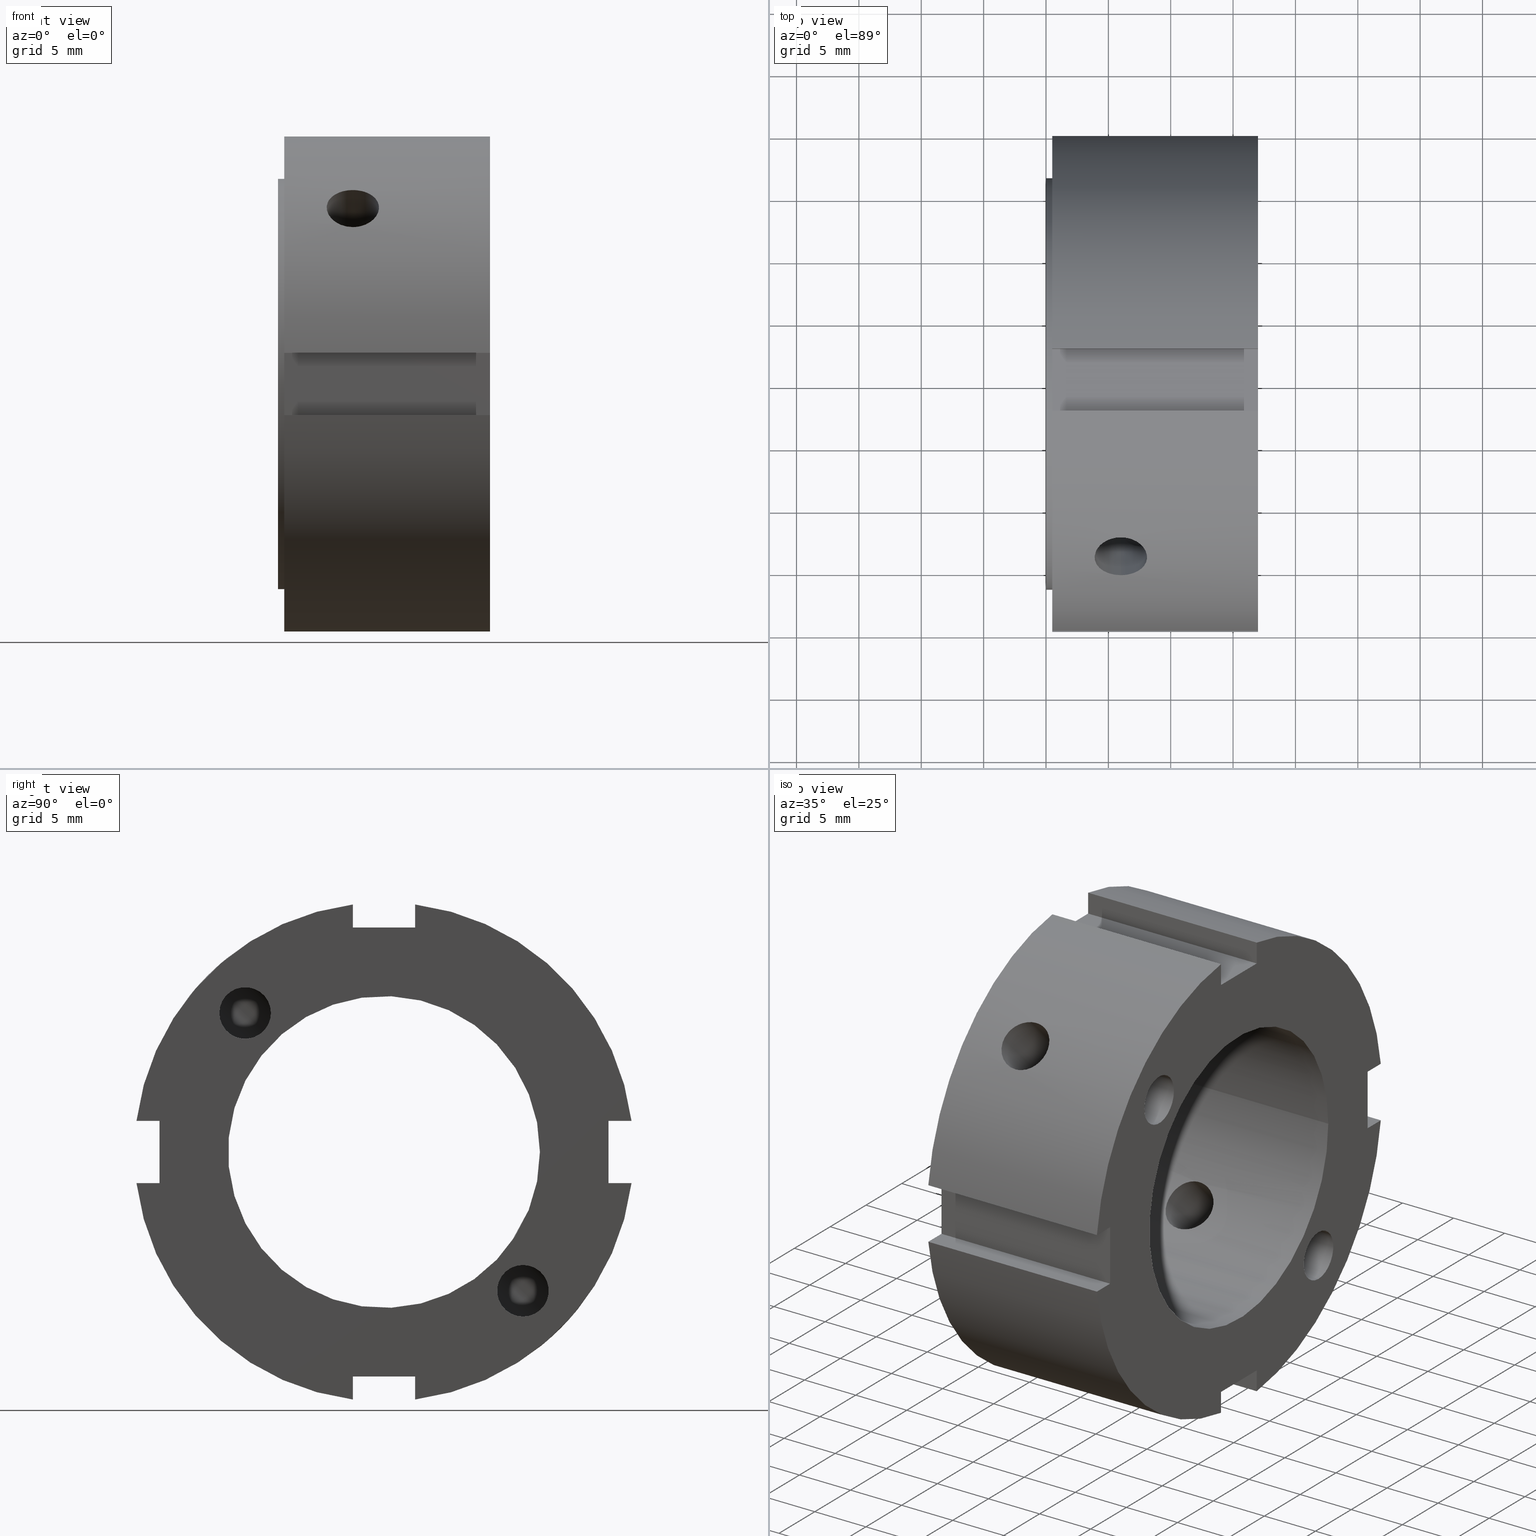
[diagram: canonical four-view strip — front | top / right | iso, engineering-drawing reading convention]
A machine part, canonical four-view strip (front | top / right | iso — engineering-drawing reading convention). The complete STEP part file that produces these views, byte-faithful:
ISO-10303-21;
HEADER;
/****************************************************************
 * Generated by software with PDElib inside                    *
 * PDElib Version v51a, created Wed 11/30/2011                  *
 * ITI Transcendata (http://www.transcendata.com/)              *
 ****************************************************************/
FILE_DESCRIPTION((''),'2;1');
FILE_NAME('C:\\Users\\sugidesign\\Documents\\Fukuda\\3Ddata\\ZMVtype\\FKD ZMV25A.stp','2014-02-22T15:57:09',('sugidesign'),(''),'Autodesk Inventor LT ','Autodesk Inventor LT ','');
FILE_SCHEMA(('CONFIG_CONTROL_DESIGN'));
ENDSEC;
DATA;
#5=APPLICATION_CONTEXT('configuration controlled 3D designs of mechanical parts and assemblies');
#6=APPLICATION_PROTOCOL_DEFINITION('International Standard','ap203_configuration_controlled_3d_design_of_mechanical_parts_and_assemblies_mim_lf',2004,#5);
#7=PRODUCT_CONTEXT('',#5,'mechanical');
#8=PRODUCT('FKD ZMV25A','FKD ZMV25A',$,(#7));
#9=PRODUCT_RELATED_PRODUCT_CATEGORY('part',$,(#8));
#10=PRODUCT_DEFINITION_FORMATION('',$,#8);
#11=PRODUCT_DEFINITION_CONTEXT('part definition',#5,'design');
#12=PRODUCT_DEFINITION('',$,#10,#11);
#18=(NAMED_UNIT(*)PLANE_ANGLE_UNIT()SI_UNIT($,.RADIAN.));
#19=DIMENSIONAL_EXPONENTS(0.0,0.0,0.0,0.0,0.0,0.0,0.0);
#20=PLANE_ANGLE_MEASURE_WITH_UNIT(PLANE_ANGLE_MEASURE(0.0174532925),#18);
#24=(CONVERSION_BASED_UNIT('DEGREE',#20)NAMED_UNIT(#19)PLANE_ANGLE_UNIT());
#28=(NAMED_UNIT(*)SI_UNIT($,.STERADIAN.)SOLID_ANGLE_UNIT());
#32=(LENGTH_UNIT()NAMED_UNIT(*)SI_UNIT(.MILLI.,.METRE.));
#34=UNCERTAINTY_MEASURE_WITH_UNIT(LENGTH_MEASURE(0.01),#32,'DISTANCE_ACCURACY_VALUE','');
#36=(GEOMETRIC_REPRESENTATION_CONTEXT(3)GLOBAL_UNCERTAINTY_ASSIGNED_CONTEXT((#34))GLOBAL_UNIT_ASSIGNED_CONTEXT((#24,#28,#32))REPRESENTATION_CONTEXT('None','None'));
#37=AXIS2_PLACEMENT_3D('',#38,#39,#40);
#38=CARTESIAN_POINT('',(0.0,0.0,0.0));
#39=DIRECTION('',(0.0,0.0,1.0));
#40=DIRECTION('',(1.0,0.0,0.0));
#41=SHAPE_REPRESENTATION('',(#37),#36);
#42=PRODUCT_DEFINITION_SHAPE('','',#12);
#43=SHAPE_DEFINITION_REPRESENTATION(#42,#41);
#49=(NAMED_UNIT(*)PLANE_ANGLE_UNIT()SI_UNIT($,.RADIAN.));
#50=DIMENSIONAL_EXPONENTS(0.0,0.0,0.0,0.0,0.0,0.0,0.0);
#51=PLANE_ANGLE_MEASURE_WITH_UNIT(PLANE_ANGLE_MEASURE(0.0174532925),#49);
#55=(CONVERSION_BASED_UNIT('DEGREE',#51)NAMED_UNIT(#50)PLANE_ANGLE_UNIT());
#59=(NAMED_UNIT(*)SI_UNIT($,.STERADIAN.)SOLID_ANGLE_UNIT());
#63=(LENGTH_UNIT()NAMED_UNIT(*)SI_UNIT(.MILLI.,.METRE.));
#65=UNCERTAINTY_MEASURE_WITH_UNIT(LENGTH_MEASURE(0.000001),#63,'DISTANCE_ACCURACY_VALUE','');
#67=(GEOMETRIC_REPRESENTATION_CONTEXT(3)GLOBAL_UNCERTAINTY_ASSIGNED_CONTEXT((#65))GLOBAL_UNIT_ASSIGNED_CONTEXT((#55,#59,#63))REPRESENTATION_CONTEXT('','3D'));
#68=CARTESIAN_POINT('',(11.499999999999996,-11.136931803688119,11.13693180368813));
#69=DIRECTION('',(-1.0,0.0,0.0));
#70=DIRECTION('',(0.0,-1.0,0.0));
#71=AXIS2_PLACEMENT_3D('',#68,#69,#70);
#72=CYLINDRICAL_SURFACE('',#71,2.067);
#73=CARTESIAN_POINT('',(16.999999999999996,-13.203931803688121,11.13693180368813));
#74=VERTEX_POINT('',#73);
#75=CARTESIAN_POINT('',(16.999999999999996,-11.136931803688119,11.13693180368813));
#76=DIRECTION('',(-1.0,0.0,0.0));
#77=DIRECTION('',(0.0,-1.0,0.0));
#78=AXIS2_PLACEMENT_3D('',#75,#76,#77);
#79=CIRCLE('',#78,2.067);
#80=EDGE_CURVE('',#74,#74,#79,.T.);
#81=ORIENTED_EDGE('',*,*,#80,.F.);
#82=EDGE_LOOP('',(#81));
#83=FACE_OUTER_BOUND('',#82,.T.);
#84=CARTESIAN_POINT('',(6.370824756455077,-9.675342086975526,12.598521520400725));
#85=VERTEX_POINT('',#84);
#86=CARTESIAN_POINT('',(6.37082475645509,-9.675342086975526,12.598521520400725));
#87=CARTESIAN_POINT('',(6.37082475645509,-9.737375070904674,12.660554504329873));
#88=CARTESIAN_POINT('',(6.398686747881438,-9.789671180849885,12.705910696689312));
#89=CARTESIAN_POINT('',(6.46582116968276,-9.89204810779821,12.7883168390523));
#90=CARTESIAN_POINT('',(6.50695001458134,-9.941656048925594,12.824428078658958));
#91=CARTESIAN_POINT('',(6.642032766500671,-10.096678399516239,12.927399416916746));
#92=CARTESIAN_POINT('',(6.746297766625897,-10.205822585804214,12.986972994697059));
#93=CARTESIAN_POINT('',(7.074586702239827,-10.566981789402426,13.140967024820156));
#94=CARTESIAN_POINT('',(7.30951086731001,-10.847481330903184,13.203931803688132));
#95=CARTESIAN_POINT('',(7.668468549369414,-11.371207955295269,13.203931803688132));
#96=CARTESIAN_POINT('',(7.822995877064949,-11.636794966666194,13.161449754094217));
#97=CARTESIAN_POINT('',(7.985074134019738,-12.021746137416748,13.010058757247023));
#98=CARTESIAN_POINT('',(8.027903580642869,-12.148051716042387,12.945354212490734));
#99=CARTESIAN_POINT('',(8.085363179783053,-12.386229599086104,12.789790637900165));
#100=CARTESIAN_POINT('',(8.099999999999996,-12.498104695319723,12.698938345481707));
#101=CARTESIAN_POINT('',(8.099999999999996,-12.698938345481706,12.498104695319723));
#102=CARTESIAN_POINT('',(8.085363179783053,-12.789790637900163,12.386229599086105));
#103=CARTESIAN_POINT('',(8.027903580642869,-12.945354212490729,12.148051716042385));
#104=CARTESIAN_POINT('',(7.985074134019738,-13.01005875724702,12.021746137416748));
#105=CARTESIAN_POINT('',(7.822995877064952,-13.161449754094207,11.636794966666198));
#106=CARTESIAN_POINT('',(7.668468549369417,-13.203931803688118,11.371207955295271));
#107=CARTESIAN_POINT('',(7.309510867310025,-13.203931803688118,10.847481330903202));
#108=CARTESIAN_POINT('',(7.074586702239859,-13.140967024820149,10.566981789402449));
#109=CARTESIAN_POINT('',(6.74629776662595,-12.986972994697055,10.205822585804242));
#110=CARTESIAN_POINT('',(6.642032766500732,-12.927399416916746,10.096678399516268));
#111=CARTESIAN_POINT('',(6.506950014581411,-12.824428078658958,9.941656048925621));
#112=CARTESIAN_POINT('',(6.46582116968284,-12.7883168390523,9.892048107798235));
#113=CARTESIAN_POINT('',(6.398686747881524,-12.705910696689305,9.789671180849902));
#114=CARTESIAN_POINT('',(6.370824756455162,-12.660554504329856,9.73737507090468));
#115=CARTESIAN_POINT('',(6.370824756455164,-12.536488536471564,9.61330910304639));
#116=CARTESIAN_POINT('',(6.39868674788152,-12.48419242652634,9.567952910686939));
#117=CARTESIAN_POINT('',(6.465821169682839,-12.381815499578007,9.485546768323943));
#118=CARTESIAN_POINT('',(6.506950014581411,-12.332207558450621,9.449435528717284));
#119=CARTESIAN_POINT('',(6.642032766500733,-12.177185207859972,9.3464641904595));
#120=CARTESIAN_POINT('',(6.746297766625959,-12.068041021572,9.286890612679192));
#121=CARTESIAN_POINT('',(7.074586702239865,-11.706881817973789,9.132896582556096));
#122=CARTESIAN_POINT('',(7.309510867310034,-11.426382276473037,9.069931803688128));
#123=CARTESIAN_POINT('',(7.668468549369424,-10.90265565208097,9.06993180368813));
#124=CARTESIAN_POINT('',(7.822995877064959,-10.637068640710044,9.112413853282043));
#125=CARTESIAN_POINT('',(7.985074134019746,-10.252117469959485,9.263804850129237));
#126=CARTESIAN_POINT('',(8.027903580642873,-10.125811891333852,9.328509394885527));
#127=CARTESIAN_POINT('',(8.085363179783055,-9.887634008290133,9.484072969476097));
#128=CARTESIAN_POINT('',(8.099999999999998,-9.77575891205651,9.574925261894551));
#129=CARTESIAN_POINT('',(8.099999999999994,-9.574925261894524,9.775758912056535));
#130=CARTESIAN_POINT('',(8.085363179783052,-9.484072969476074,9.887634008290162));
#131=CARTESIAN_POINT('',(8.027903580642864,-9.328509394885508,10.12581189133388));
#132=CARTESIAN_POINT('',(7.98507413401973,-9.263804850129215,10.252117469959517));
#133=CARTESIAN_POINT('',(7.82299587706494,-9.112413853282028,10.637068640710069));
#134=CARTESIAN_POINT('',(7.668468549369401,-9.069931803688116,10.902655652080995));
#135=CARTESIAN_POINT('',(7.309510867309999,-9.069931803688116,11.42638227647307));
#136=CARTESIAN_POINT('',(7.07458670223982,-9.132896582556093,11.70688181797383));
#137=CARTESIAN_POINT('',(6.746297766625895,-9.286890612679192,12.068041021572038));
#138=CARTESIAN_POINT('',(6.64203276650067,-9.346464190459507,12.177185207860017));
#139=CARTESIAN_POINT('',(6.506950014581343,-9.449435528717293,12.33220755845066));
#140=CARTESIAN_POINT('',(6.465821169682767,-9.48554676832395,12.381815499578043));
#141=CARTESIAN_POINT('',(6.398686747881445,-9.567952910686943,12.484192426526368));
#142=CARTESIAN_POINT('',(6.37082475645509,-9.61330910304638,12.53648853647158));
#143=CARTESIAN_POINT('',(6.37082475645509,-9.675342086975526,12.598521520400725));
#144=B_SPLINE_CURVE_WITH_KNOTS('',3,(#86,#87,#88,#89,#90,#91,#92,#93,#94,#95,#96,#97,#98,#99,#100,#101,#102,#103,#104,#105,#106,#107,#108,#109,#110,#111,#112,#113,#114,#115,#116,#117,#118,#119,#120,#121,#122,#123,#124,#125,#126,#127,#128,#129,#130,#131,#132,#133,#134,#135,#136,#137,#138,#139,#140,#141,#142,#143),.UNSPECIFIED.,.T.,.U.,(4,2,2,2,2,2,2,2,2,2,2,2,2,2,2,2,2,2,2,2,2,2,2,2,2,2,2,2,4),(0.0,0.026318366156122,0.052636732312244,0.105273464624488,0.210546929248976,0.295753430800967,0.338356681576963,0.380959932352959,0.423563183128954,0.46616643390495,0.55137293545694,0.656646400081423,0.709283132393665,0.735601498549785,0.761919864705906,0.788238230862027,0.814556597018147,0.867193329330388,0.97246679395487,1.057673295506862,1.100276546282858,1.142879797058854,1.18548304783485,1.228086298610845,1.313292800162837,1.418566264787323,1.471202997099566,1.497521363255687,1.523839729411809),.UNSPECIFIED.);
#145=EDGE_CURVE('',#85,#85,#144,.T.);
#146=ORIENTED_EDGE('',*,*,#145,.F.);
#147=EDGE_LOOP('',(#146));
#148=FACE_BOUND('',#147,.T.);
#149=ADVANCED_FACE('',(#83,#148),#72,.F.);
#150=CARTESIAN_POINT('',(5.999999999999996,-41.466854233230663,41.46685423323067));
#151=DIRECTION('',(0.0,-0.707106781186547,0.707106781186548));
#152=DIRECTION('',(1.0,0.0,0.0));
#153=AXIS2_PLACEMENT_3D('',#150,#151,#152);
#154=CYLINDRICAL_SURFACE('',#153,2.1);
#155=CARTESIAN_POINT('',(5.999999999999996,-15.548885275705118,12.57903679472162));
#156=VERTEX_POINT('',#155);
#157=CARTESIAN_POINT('',(5.999999999999996,-15.548885275705116,12.579036794721624));
#158=CARTESIAN_POINT('',(5.736109916406895,-15.548885275705116,12.579036794721624));
#159=CARTESIAN_POINT('',(5.45476406221831,-15.515661773209469,12.620453155101028));
#160=CARTESIAN_POINT('',(4.93742553178847,-15.378850830171311,12.786811376909208));
#161=CARTESIAN_POINT('',(4.701416181922334,-15.275055123636342,12.911529971040007));
#162=CARTESIAN_POINT('',(4.328736108781461,-15.031150372504074,13.194674433769757));
#163=CARTESIAN_POINT('',(4.167151494345116,-14.874702546907892,13.371994709189609));
#164=CARTESIAN_POINT('',(3.952778074131436,-14.52360405671482,13.752524988666654));
#165=CARTESIAN_POINT('',(3.899999999999996,-14.328733318571576,13.955537928890326));
#166=CARTESIAN_POINT('',(3.899999999999996,-13.955537928890319,14.32873331857158));
#167=CARTESIAN_POINT('',(3.952778074131437,-13.752524988666647,14.523604056714829));
#168=CARTESIAN_POINT('',(4.167151494345119,-13.371994709189599,14.874702546907901));
#169=CARTESIAN_POINT('',(4.32873610878146,-13.194674433769752,15.031150372504083));
#170=CARTESIAN_POINT('',(4.701416181922333,-12.91152997104,15.275055123636349));
#171=CARTESIAN_POINT('',(4.937425531788472,-12.786811376909203,15.378850830171316));
#172=CARTESIAN_POINT('',(5.454764062218312,-12.620453155101021,15.515661773209475));
#173=CARTESIAN_POINT('',(5.736109916406895,-12.579036794721617,15.548885275705125));
#174=CARTESIAN_POINT('',(6.263890083593098,-12.579036794721617,15.548885275705125));
#175=CARTESIAN_POINT('',(6.545235937781681,-12.620453155101021,15.515661773209475));
#176=CARTESIAN_POINT('',(7.06257446821152,-12.786811376909203,15.378850830171316));
#177=CARTESIAN_POINT('',(7.298583818077658,-12.91152997104,15.275055123636349));
#178=CARTESIAN_POINT('',(7.671263891218531,-13.194674433769752,15.031150372504083));
#179=CARTESIAN_POINT('',(7.832848505654874,-13.3719947091896,14.874702546907898));
#180=CARTESIAN_POINT('',(8.047221925868556,-13.752524988666648,14.523604056714827));
#181=CARTESIAN_POINT('',(8.099999999999996,-13.955537928890319,14.32873331857158));
#182=CARTESIAN_POINT('',(8.099999999999996,-14.328733318571574,13.955537928890326));
#183=CARTESIAN_POINT('',(8.047221925868556,-14.52360405671482,13.752524988666654));
#184=CARTESIAN_POINT('',(7.832848505654878,-14.874702546907891,13.371994709189611));
#185=CARTESIAN_POINT('',(7.671263891218531,-15.031150372504069,13.194674433769764));
#186=CARTESIAN_POINT('',(7.29858381807766,-15.275055123636339,12.911529971040014));
#187=CARTESIAN_POINT('',(7.062574468211525,-15.378850830171309,12.786811376909206));
#188=CARTESIAN_POINT('',(6.545235937781685,-15.515661773209468,12.620453155101025));
#189=CARTESIAN_POINT('',(6.263890083593098,-15.548885275705118,12.579036794721624));
#190=CARTESIAN_POINT('',(5.999999999999996,-15.548885275705118,12.579036794721624));
#191=B_SPLINE_CURVE_WITH_KNOTS('',3,(#157,#158,#159,#160,#161,#162,#163,#164,#165,#166,#167,#168,#169,#170,#171,#172,#173,#174,#175,#176,#177,#178,#179,#180,#181,#182,#183,#184,#185,#186,#187,#188,#189,#190),.UNSPECIFIED.,.T.,.U.,(4,2,2,2,2,2,2,2,2,2,2,2,2,2,2,2,4),(0.0,0.07916702507793,0.158334050155861,0.237500747381212,0.316667444606564,0.395834141831916,0.475000839057268,0.554167864135198,0.633334889213129,0.712501914291059,0.791668939368989,0.870835636594341,0.950002333819693,1.029169031045044,1.108335728270395,1.187502753348326,1.266669778426257),.UNSPECIFIED.);
#192=EDGE_CURVE('',#156,#156,#191,.T.);
#193=ORIENTED_EDGE('',*,*,#192,.F.);
#194=EDGE_LOOP('',(#193));
#195=FACE_OUTER_BOUND('',#194,.T.);
#196=ORIENTED_EDGE('',*,*,#145,.T.);
#197=EDGE_LOOP('',(#196));
#198=FACE_BOUND('',#197,.T.);
#199=CARTESIAN_POINT('',(5.999999999999996,-10.198132604808535,7.228284123825035));
#200=VERTEX_POINT('',#199);
#201=CARTESIAN_POINT('',(5.999999999999996,-10.198132604808535,7.228284123825038));
#202=CARTESIAN_POINT('',(6.264223494722858,-10.198132604808535,7.228284123825038));
#203=CARTESIAN_POINT('',(6.545708881319178,-10.167352052052243,7.272326662017709));
#204=CARTESIAN_POINT('',(7.06295267849816,-10.039524336396386,7.447800600406278));
#205=CARTESIAN_POINT('',(7.298755034326162,-9.942138120032238,7.578855103776636));
#206=CARTESIAN_POINT('',(7.671088311067131,-9.710357777380862,7.873633530815152));
#207=CARTESIAN_POINT('',(7.832624321187875,-9.560348644030132,8.057102403893207));
#208=CARTESIAN_POINT('',(8.047093901954037,-9.218180385001549,8.446438049773532));
#209=CARTESIAN_POINT('',(8.099999999999996,-9.025663835764046,8.652005693899646));
#210=CARTESIAN_POINT('',(8.099999999999996,-8.652005693899641,9.02566383576405));
#211=CARTESIAN_POINT('',(8.047093901954035,-8.446438049773525,9.218180385001553));
#212=CARTESIAN_POINT('',(7.832624321187872,-8.057102403893202,9.560348644030137));
#213=CARTESIAN_POINT('',(7.671088311067131,-7.873633530815143,9.710357777380867));
#214=CARTESIAN_POINT('',(7.298755034326162,-7.578855103776627,9.942138120032242));
#215=CARTESIAN_POINT('',(7.062952678498159,-7.447800600406273,10.03952433639639));
#216=CARTESIAN_POINT('',(6.545708881319178,-7.272326662017704,10.167352052052248));
#217=CARTESIAN_POINT('',(6.264223494722858,-7.228284123825032,10.198132604808539));
#218=CARTESIAN_POINT('',(5.735776505277135,-7.228284123825032,10.198132604808539));
#219=CARTESIAN_POINT('',(5.454291118680819,-7.272326662017701,10.167352052052244));
#220=CARTESIAN_POINT('',(4.937047321501836,-7.447800600406271,10.039524336396388));
#221=CARTESIAN_POINT('',(4.701244965673831,-7.578855103776627,9.942138120032242));
#222=CARTESIAN_POINT('',(4.328911688932861,-7.873633530815144,9.710357777380867));
#223=CARTESIAN_POINT('',(4.167375678812121,-8.057102403893202,9.560348644030137));
#224=CARTESIAN_POINT('',(3.952906098045958,-8.446438049773525,9.218180385001555));
#225=CARTESIAN_POINT('',(3.899999999999996,-8.652005693899641,9.025663835764052));
#226=CARTESIAN_POINT('',(3.899999999999996,-9.025663835764044,8.652005693899648));
#227=CARTESIAN_POINT('',(3.952906098045955,-9.218180385001546,8.446438049773535));
#228=CARTESIAN_POINT('',(4.167375678812112,-9.560348644030126,8.057102403893214));
#229=CARTESIAN_POINT('',(4.328911688932863,-9.710357777380857,7.873633530815161));
#230=CARTESIAN_POINT('',(4.70124496567383,-9.942138120032233,7.578855103776645));
#231=CARTESIAN_POINT('',(4.93704732150183,-10.039524336396383,7.447800600406279));
#232=CARTESIAN_POINT('',(5.454291118680812,-10.167352052052243,7.272326662017709));
#233=CARTESIAN_POINT('',(5.735776505277133,-10.198132604808535,7.228284123825039));
#234=CARTESIAN_POINT('',(5.999999999999996,-10.198132604808535,7.228284123825039));
#235=B_SPLINE_CURVE_WITH_KNOTS('',3,(#201,#202,#203,#204,#205,#206,#207,#208,#209,#210,#211,#212,#213,#214,#215,#216,#217,#218,#219,#220,#221,#222,#223,#224,#225,#226,#227,#228,#229,#230,#231,#232,#233,#234),.UNSPECIFIED.,.T.,.U.,(4,2,2,2,2,2,2,2,2,2,2,2,2,2,2,2,4),(0.0,0.079267048416859,0.158534096833717,0.237798958621083,0.317063820408449,0.396328682195814,0.47559354398318,0.554860592400039,0.634127640816897,0.713394689233756,0.792661737650615,0.87192659943798,0.951191461225346,1.030456323012711,1.109721184800076,1.188988233216935,1.268255281633794),.UNSPECIFIED.);
#236=EDGE_CURVE('',#200,#200,#235,.T.);
#237=ORIENTED_EDGE('',*,*,#236,.F.);
#238=EDGE_LOOP('',(#237));
#239=FACE_BOUND('',#238,.T.);
#240=ADVANCED_FACE('',(#195,#198,#239),#154,.F.);
#241=CARTESIAN_POINT('',(11.499999999999996,11.136931803688128,-11.136931803688121));
#242=DIRECTION('',(1.0,0.0,0.0));
#243=DIRECTION('',(0.0,0.0,-1.0));
#244=AXIS2_PLACEMENT_3D('',#241,#242,#243);
#245=CYLINDRICAL_SURFACE('',#244,2.067);
#246=CARTESIAN_POINT('',(6.370824756455077,12.598521520400723,-9.67534208697553));
#247=VERTEX_POINT('',#246);
#248=CARTESIAN_POINT('',(6.370824756455077,12.598521520400723,-9.67534208697553));
#249=CARTESIAN_POINT('',(6.370824756455077,12.536488536471577,-9.613309103046383));
#250=CARTESIAN_POINT('',(6.398686747881434,12.484192426526363,-9.567952910686943));
#251=CARTESIAN_POINT('',(6.465821169682756,12.381815499578037,-9.485546768323951));
#252=CARTESIAN_POINT('',(6.506950014581344,12.332207558450659,-9.449435528717293));
#253=CARTESIAN_POINT('',(6.642032766500671,12.177185207860013,-9.346464190459509));
#254=CARTESIAN_POINT('',(6.746297766625895,12.068041021572036,-9.286890612679194));
#255=CARTESIAN_POINT('',(7.07458670223982,11.706881817973828,-9.132896582556096));
#256=CARTESIAN_POINT('',(7.309510867309999,11.426382276473069,-9.069931803688117));
#257=CARTESIAN_POINT('',(7.668468549369401,10.902655652080991,-9.069931803688117));
#258=CARTESIAN_POINT('',(7.822995877064941,10.637068640710066,-9.11241385328203));
#259=CARTESIAN_POINT('',(7.98507413401973,10.25211746995951,-9.263804850129219));
#260=CARTESIAN_POINT('',(8.027903580642864,10.125811891333875,-9.32850939488551));
#261=CARTESIAN_POINT('',(8.08536317978305,9.887634008290158,-9.484072969476076));
#262=CARTESIAN_POINT('',(8.099999999999994,9.775758912056533,-9.574925261894526));
#263=CARTESIAN_POINT('',(8.099999999999998,9.574925261894547,-9.77575891205651));
#264=CARTESIAN_POINT('',(8.085363179783055,9.484072969476095,-9.887634008290133));
#265=CARTESIAN_POINT('',(8.027903580642873,9.328509394885527,-10.125811891333852));
#266=CARTESIAN_POINT('',(7.985074134019744,9.263804850129233,-10.252117469959487));
#267=CARTESIAN_POINT('',(7.822995877064959,9.112413853282039,-10.637068640710046));
#268=CARTESIAN_POINT('',(7.668468549369424,9.069931803688128,-10.902655652080973));
#269=CARTESIAN_POINT('',(7.309510867310034,9.069931803688125,-11.426382276473039));
#270=CARTESIAN_POINT('',(7.074586702239868,9.132896582556095,-11.706881817973791));
#271=CARTESIAN_POINT('',(6.746297766625959,9.286890612679189,-12.068041021572));
#272=CARTESIAN_POINT('',(6.642032766500735,9.346464190459495,-12.177185207859972));
#273=CARTESIAN_POINT('',(6.506950014581411,9.449435528717281,-12.332207558450623));
#274=CARTESIAN_POINT('',(6.465821169682839,9.485546768323943,-12.381815499578011));
#275=CARTESIAN_POINT('',(6.39868674788152,9.567952910686939,-12.484192426526345));
#276=CARTESIAN_POINT('',(6.370824756455164,9.613309103046387,-12.536488536471566));
#277=CARTESIAN_POINT('',(6.370824756455162,9.737375070904676,-12.660554504329857));
#278=CARTESIAN_POINT('',(6.398686747881522,9.789671180849899,-12.705910696689308));
#279=CARTESIAN_POINT('',(6.465821169682839,9.892048107798232,-12.788316839052303));
#280=CARTESIAN_POINT('',(6.506950014581409,9.941656048925614,-12.824428078658961));
#281=CARTESIAN_POINT('',(6.642032766500725,10.096678399516261,-12.927399416916746));
#282=CARTESIAN_POINT('',(6.746297766625951,10.205822585804235,-12.986972994697055));
#283=CARTESIAN_POINT('',(7.074586702239863,10.566981789402444,-13.140967024820151));
#284=CARTESIAN_POINT('',(7.309510867310025,10.8474813309032,-13.203931803688121));
#285=CARTESIAN_POINT('',(7.668468549369417,11.371207955295271,-13.203931803688121));
#286=CARTESIAN_POINT('',(7.822995877064956,11.636794966666198,-13.161449754094207));
#287=CARTESIAN_POINT('',(7.98507413401974,12.021746137416752,-13.010058757247018));
#288=CARTESIAN_POINT('',(8.027903580642871,12.148051716042392,-12.945354212490727));
#289=CARTESIAN_POINT('',(8.085363179783055,12.386229599086109,-12.789790637900161));
#290=CARTESIAN_POINT('',(8.099999999999996,12.498104695319729,-12.698938345481707));
#291=CARTESIAN_POINT('',(8.099999999999996,12.698938345481711,-12.498104695319725));
#292=CARTESIAN_POINT('',(8.085363179783052,12.789790637900165,-12.386229599086104));
#293=CARTESIAN_POINT('',(8.027903580642864,12.945354212490736,-12.148051716042382));
#294=CARTESIAN_POINT('',(7.985074134019734,13.01005875724703,-12.021746137416747));
#295=CARTESIAN_POINT('',(7.822995877064944,13.161449754094219,-11.636794966666193));
#296=CARTESIAN_POINT('',(7.668468549369408,13.203931803688128,-11.371207955295265));
#297=CARTESIAN_POINT('',(7.309510867310003,13.203931803688128,-10.847481330903186));
#298=CARTESIAN_POINT('',(7.074586702239824,13.140967024820156,-10.566981789402428));
#299=CARTESIAN_POINT('',(6.746297766625897,12.986972994697057,-10.205822585804219));
#300=CARTESIAN_POINT('',(6.64203276650067,12.927399416916742,-10.096678399516243));
#301=CARTESIAN_POINT('',(6.506950014581338,12.824428078658956,-9.941656048925598));
#302=CARTESIAN_POINT('',(6.46582116968276,12.788316839052298,-9.892048107798214));
#303=CARTESIAN_POINT('',(6.398686747881438,12.705910696689308,-9.789671180849888));
#304=CARTESIAN_POINT('',(6.370824756455077,12.66055450432987,-9.737375070904676));
#305=CARTESIAN_POINT('',(6.370824756455077,12.598521520400723,-9.67534208697553));
#306=B_SPLINE_CURVE_WITH_KNOTS('',3,(#248,#249,#250,#251,#252,#253,#254,#255,#256,#257,#258,#259,#260,#261,#262,#263,#264,#265,#266,#267,#268,#269,#270,#271,#272,#273,#274,#275,#276,#277,#278,#279,#280,#281,#282,#283,#284,#285,#286,#287,#288,#289,#290,#291,#292,#293,#294,#295,#296,#297,#298,#299,#300,#301,#302,#303,#304,#305),.UNSPECIFIED.,.T.,.U.,(4,2,2,2,2,2,2,2,2,2,2,2,2,2,2,2,2,2,2,2,2,2,2,2,2,2,2,2,4),(0.0,0.026318366156122,0.052636732312243,0.105273464624486,0.210546929248972,0.295753430800964,0.338356681576959,0.380959932352955,0.423563183128951,0.466166433904947,0.551372935456938,0.656646400081421,0.709283132393662,0.735601498549782,0.761919864705903,0.788238230862023,0.814556597018144,0.867193329330386,0.972466793954868,1.05767329550686,1.100276546282855,1.142879797058851,1.185483047834847,1.228086298610843,1.313292800162834,1.418566264787322,1.471202997099566,1.497521363255687,1.523839729411809),.UNSPECIFIED.);
#307=EDGE_CURVE('',#247,#247,#306,.T.);
#308=ORIENTED_EDGE('',*,*,#307,.F.);
#309=EDGE_LOOP('',(#308));
#310=FACE_OUTER_BOUND('',#309,.T.);
#311=CARTESIAN_POINT('',(16.999999999999996,11.136931803688128,-13.203931803688123));
#312=VERTEX_POINT('',#311);
#313=CARTESIAN_POINT('',(16.999999999999996,11.136931803688128,-11.136931803688121));
#314=DIRECTION('',(-1.0,0.0,0.0));
#315=DIRECTION('',(0.0,0.0,-1.0));
#316=AXIS2_PLACEMENT_3D('',#313,#314,#315);
#317=CIRCLE('',#316,2.067);
#318=EDGE_CURVE('',#312,#312,#317,.T.);
#319=ORIENTED_EDGE('',*,*,#318,.F.);
#320=EDGE_LOOP('',(#319));
#321=FACE_BOUND('',#320,.T.);
#322=ADVANCED_FACE('',(#310,#321),#245,.F.);
#323=CARTESIAN_POINT('',(5.999999999999996,41.466854233230663,-41.46685423323067));
#324=DIRECTION('',(0.0,-0.707106781186547,0.707106781186548));
#325=DIRECTION('',(1.0,0.0,0.0));
#326=AXIS2_PLACEMENT_3D('',#323,#324,#325);
#327=CYLINDRICAL_SURFACE('',#326,2.1);
#328=CARTESIAN_POINT('',(5.999999999999996,12.579036794721617,-15.548885275705119));
#329=VERTEX_POINT('',#328);
#330=CARTESIAN_POINT('',(5.999999999999996,12.579036794721617,-15.548885275705119));
#331=CARTESIAN_POINT('',(6.263890083593098,12.579036794721617,-15.548885275705119));
#332=CARTESIAN_POINT('',(6.545235937781681,12.620453155101021,-15.515661773209475));
#333=CARTESIAN_POINT('',(7.062574468211521,12.786811376909203,-15.378850830171316));
#334=CARTESIAN_POINT('',(7.298583818077659,12.91152997104,-15.275055123636349));
#335=CARTESIAN_POINT('',(7.671263891218532,13.194674433769752,-15.031150372504083));
#336=CARTESIAN_POINT('',(7.832848505654875,13.3719947091896,-14.874702546907898));
#337=CARTESIAN_POINT('',(8.047221925868556,13.752524988666648,-14.523604056714827));
#338=CARTESIAN_POINT('',(8.099999999999996,13.955537928890319,-14.32873331857158));
#339=CARTESIAN_POINT('',(8.099999999999996,14.328733318571576,-13.955537928890326));
#340=CARTESIAN_POINT('',(8.047221925868556,14.523604056714824,-13.752524988666654));
#341=CARTESIAN_POINT('',(7.832848505654879,14.874702546907891,-13.371994709189611));
#342=CARTESIAN_POINT('',(7.671263891218532,15.031150372504069,-13.194674433769764));
#343=CARTESIAN_POINT('',(7.29858381807766,15.275055123636339,-12.911529971040014));
#344=CARTESIAN_POINT('',(7.062574468211525,15.378850830171309,-12.786811376909206));
#345=CARTESIAN_POINT('',(6.545235937781685,15.515661773209468,-12.620453155101025));
#346=CARTESIAN_POINT('',(6.263890083593098,15.548885275705118,-12.579036794721626));
#347=CARTESIAN_POINT('',(5.736109916406895,15.548885275705118,-12.579036794721626));
#348=CARTESIAN_POINT('',(5.45476406221831,15.515661773209469,-12.620453155101028));
#349=CARTESIAN_POINT('',(4.93742553178847,15.378850830171311,-12.786811376909208));
#350=CARTESIAN_POINT('',(4.701416181922334,15.275055123636342,-12.911529971040007));
#351=CARTESIAN_POINT('',(4.328736108781461,15.031150372504074,-13.194674433769757));
#352=CARTESIAN_POINT('',(4.167151494345116,14.874702546907892,-13.371994709189609));
#353=CARTESIAN_POINT('',(3.952778074131436,14.52360405671482,-13.752524988666654));
#354=CARTESIAN_POINT('',(3.899999999999996,14.328733318571576,-13.955537928890326));
#355=CARTESIAN_POINT('',(3.899999999999996,13.955537928890319,-14.32873331857158));
#356=CARTESIAN_POINT('',(3.952778074131438,13.752524988666648,-14.523604056714827));
#357=CARTESIAN_POINT('',(4.167151494345119,13.3719947091896,-14.874702546907898));
#358=CARTESIAN_POINT('',(4.32873610878146,13.194674433769752,-15.031150372504083));
#359=CARTESIAN_POINT('',(4.701416181922333,12.91152997104,-15.275055123636349));
#360=CARTESIAN_POINT('',(4.937425531788472,12.786811376909203,-15.378850830171316));
#361=CARTESIAN_POINT('',(5.454764062218312,12.620453155101021,-15.515661773209475));
#362=CARTESIAN_POINT('',(5.736109916406895,12.579036794721617,-15.548885275705119));
#363=CARTESIAN_POINT('',(5.999999999999996,12.579036794721617,-15.548885275705119));
#364=B_SPLINE_CURVE_WITH_KNOTS('',3,(#330,#331,#332,#333,#334,#335,#336,#337,#338,#339,#340,#341,#342,#343,#344,#345,#346,#347,#348,#349,#350,#351,#352,#353,#354,#355,#356,#357,#358,#359,#360,#361,#362,#363),.UNSPECIFIED.,.T.,.U.,(4,2,2,2,2,2,2,2,2,2,2,2,2,2,2,2,4),(0.0,0.07916702507793,0.158334050155861,0.237500747381212,0.316667444606564,0.395834141831916,0.475000839057267,0.554167864135197,0.633334889213128,0.712501914291058,0.791668939368989,0.870835636594341,0.950002333819692,1.029169031045044,1.108335728270396,1.187502753348326,1.266669778426257),.UNSPECIFIED.);
#365=EDGE_CURVE('',#329,#329,#364,.T.);
#366=ORIENTED_EDGE('',*,*,#365,.F.);
#367=EDGE_LOOP('',(#366));
#368=FACE_OUTER_BOUND('',#367,.T.);
#369=ORIENTED_EDGE('',*,*,#307,.T.);
#370=EDGE_LOOP('',(#369));
#371=FACE_BOUND('',#370,.T.);
#372=CARTESIAN_POINT('',(5.999999999999996,7.228284123825032,-10.198132604808537));
#373=VERTEX_POINT('',#372);
#374=CARTESIAN_POINT('',(5.999999999999996,7.228284123825034,-10.198132604808537));
#375=CARTESIAN_POINT('',(5.735776505277135,7.228284123825034,-10.198132604808537));
#376=CARTESIAN_POINT('',(5.454291118680819,7.272326662017701,-10.167352052052244));
#377=CARTESIAN_POINT('',(4.937047321501836,7.447800600406271,-10.039524336396388));
#378=CARTESIAN_POINT('',(4.701244965673831,7.578855103776627,-9.942138120032242));
#379=CARTESIAN_POINT('',(4.328911688932861,7.873633530815144,-9.710357777380867));
#380=CARTESIAN_POINT('',(4.167375678812121,8.057102403893202,-9.560348644030137));
#381=CARTESIAN_POINT('',(3.952906098045958,8.446438049773525,-9.218180385001553));
#382=CARTESIAN_POINT('',(3.899999999999996,8.652005693899641,-9.02566383576405));
#383=CARTESIAN_POINT('',(3.899999999999997,9.025663835764044,-8.65200569389965));
#384=CARTESIAN_POINT('',(3.952906098045955,9.218180385001546,-8.446438049773535));
#385=CARTESIAN_POINT('',(4.167375678812113,9.560348644030126,-8.057102403893214));
#386=CARTESIAN_POINT('',(4.328911688932863,9.710357777380857,-7.873633530815162));
#387=CARTESIAN_POINT('',(4.70124496567383,9.942138120032233,-7.578855103776644));
#388=CARTESIAN_POINT('',(4.937047321501831,10.039524336396383,-7.447800600406279));
#389=CARTESIAN_POINT('',(5.454291118680813,10.167352052052243,-7.272326662017709));
#390=CARTESIAN_POINT('',(5.735776505277134,10.198132604808535,-7.228284123825041));
#391=CARTESIAN_POINT('',(6.264223494722858,10.198132604808535,-7.228284123825041));
#392=CARTESIAN_POINT('',(6.545708881319178,10.167352052052243,-7.272326662017709));
#393=CARTESIAN_POINT('',(7.06295267849816,10.039524336396386,-7.447800600406278));
#394=CARTESIAN_POINT('',(7.298755034326162,9.942138120032238,-7.578855103776636));
#395=CARTESIAN_POINT('',(7.671088311067131,9.710357777380862,-7.873633530815152));
#396=CARTESIAN_POINT('',(7.832624321187875,9.560348644030132,-8.057102403893207));
#397=CARTESIAN_POINT('',(8.047093901954037,9.218180385001549,-8.446438049773532));
#398=CARTESIAN_POINT('',(8.099999999999996,9.025663835764046,-8.652005693899646));
#399=CARTESIAN_POINT('',(8.099999999999996,8.652005693899643,-9.02566383576405));
#400=CARTESIAN_POINT('',(8.047093901954035,8.446438049773528,-9.218180385001553));
#401=CARTESIAN_POINT('',(7.832624321187875,8.057102403893206,-9.560348644030134));
#402=CARTESIAN_POINT('',(7.671088311067131,7.873633530815147,-9.71035777738086));
#403=CARTESIAN_POINT('',(7.298755034326163,7.578855103776631,-9.942138120032237));
#404=CARTESIAN_POINT('',(7.06295267849816,7.447800600406275,-10.039524336396388));
#405=CARTESIAN_POINT('',(6.545708881319178,7.272326662017704,-10.167352052052248));
#406=CARTESIAN_POINT('',(6.264223494722858,7.228284123825032,-10.198132604808537));
#407=CARTESIAN_POINT('',(5.999999999999996,7.228284123825032,-10.198132604808537));
#408=B_SPLINE_CURVE_WITH_KNOTS('',3,(#374,#375,#376,#377,#378,#379,#380,#381,#382,#383,#384,#385,#386,#387,#388,#389,#390,#391,#392,#393,#394,#395,#396,#397,#398,#399,#400,#401,#402,#403,#404,#405,#406,#407),.UNSPECIFIED.,.T.,.U.,(4,2,2,2,2,2,2,2,2,2,2,2,2,2,2,2,4),(0.0,0.079267048416859,0.158534096833717,0.237798958621083,0.317063820408449,0.396328682195814,0.475593543983179,0.554860592400038,0.634127640816897,0.713394689233755,0.792661737650614,0.87192659943798,0.951191461225345,1.030456323012711,1.109721184800076,1.188988233216935,1.268255281633794),.UNSPECIFIED.);
#409=EDGE_CURVE('',#373,#373,#408,.T.);
#410=ORIENTED_EDGE('',*,*,#409,.F.);
#411=EDGE_LOOP('',(#410));
#412=FACE_BOUND('',#411,.T.);
#413=ADVANCED_FACE('',(#368,#371,#412),#327,.F.);
#414=CARTESIAN_POINT('',(16.999999999999996,-2.500000000000003,-18.0));
#415=DIRECTION('',(0.0,-1.0,0.0));
#416=DIRECTION('',(-1.0,0.0,0.0));
#417=AXIS2_PLACEMENT_3D('',#414,#415,#416);
#418=PLANE('',#417);
#419=CARTESIAN_POINT('',(0.499999999999998,-2.500000000000003,-18.0));
#420=VERTEX_POINT('',#419);
#421=CARTESIAN_POINT('',(0.499999999999998,-2.500000000000002,-19.843134832984425));
#422=VERTEX_POINT('',#421);
#423=CARTESIAN_POINT('',(0.499999999999998,-2.500000000000004,-18.0));
#424=DIRECTION('',(0.0,0.0,-1.0));
#425=VECTOR('',#424,1.843134832984426);
#426=LINE('',#423,#425);
#427=EDGE_CURVE('',#420,#422,#426,.T.);
#428=ORIENTED_EDGE('',*,*,#427,.F.);
#429=CARTESIAN_POINT('',(16.999999999999996,-2.500000000000003,-18.0));
#430=VERTEX_POINT('',#429);
#431=CARTESIAN_POINT('',(16.999999999999996,-2.500000000000003,-18.0));
#432=DIRECTION('',(-1.0,0.0,0.0));
#433=VECTOR('',#432,16.5);
#434=LINE('',#431,#433);
#435=EDGE_CURVE('',#430,#420,#434,.T.);
#436=ORIENTED_EDGE('',*,*,#435,.F.);
#437=CARTESIAN_POINT('',(16.999999999999996,-2.500000000000002,-19.843134832984425));
#438=VERTEX_POINT('',#437);
#439=CARTESIAN_POINT('',(16.999999999999996,-2.500000000000003,-19.843134832984425));
#440=DIRECTION('',(0.0,0.0,1.0));
#441=VECTOR('',#440,1.843134832984426);
#442=LINE('',#439,#441);
#443=EDGE_CURVE('',#438,#430,#442,.T.);
#444=ORIENTED_EDGE('',*,*,#443,.F.);
#445=CARTESIAN_POINT('',(0.5,-2.500000000000003,-19.843134832984425));
#446=DIRECTION('',(1.0,0.0,0.0));
#447=VECTOR('',#446,16.5);
#448=LINE('',#445,#447);
#449=EDGE_CURVE('',#422,#438,#448,.T.);
#450=ORIENTED_EDGE('',*,*,#449,.F.);
#451=EDGE_LOOP('',(#428,#436,#444,#450));
#452=FACE_OUTER_BOUND('',#451,.T.);
#453=ADVANCED_FACE('',(#452),#418,.F.);
#454=CARTESIAN_POINT('',(16.999999999999996,2.499999999999996,-20.0));
#455=DIRECTION('',(0.0,1.0,0.0));
#456=DIRECTION('',(1.0,0.0,0.0));
#457=AXIS2_PLACEMENT_3D('',#454,#455,#456);
#458=PLANE('',#457);
#459=CARTESIAN_POINT('',(0.499999999999998,2.499999999999995,-19.843134832984425));
#460=VERTEX_POINT('',#459);
#461=CARTESIAN_POINT('',(0.499999999999998,2.499999999999996,-18.0));
#462=VERTEX_POINT('',#461);
#463=CARTESIAN_POINT('',(0.499999999999998,2.499999999999996,-19.843134832984425));
#464=DIRECTION('',(0.0,0.0,1.0));
#465=VECTOR('',#464,1.843134832984426);
#466=LINE('',#463,#465);
#467=EDGE_CURVE('',#460,#462,#466,.T.);
#468=ORIENTED_EDGE('',*,*,#467,.F.);
#469=CARTESIAN_POINT('',(16.999999999999996,2.499999999999995,-19.843134832984425));
#470=VERTEX_POINT('',#469);
#471=CARTESIAN_POINT('',(17.0,2.499999999999996,-19.843134832984429));
#472=DIRECTION('',(-1.0,0.0,0.0));
#473=VECTOR('',#472,16.5);
#474=LINE('',#471,#473);
#475=EDGE_CURVE('',#470,#460,#474,.T.);
#476=ORIENTED_EDGE('',*,*,#475,.F.);
#477=CARTESIAN_POINT('',(16.999999999999996,2.499999999999996,-18.0));
#478=VERTEX_POINT('',#477);
#479=CARTESIAN_POINT('',(16.999999999999996,2.499999999999996,-18.0));
#480=DIRECTION('',(0.0,0.0,-1.0));
#481=VECTOR('',#480,1.843134832984426);
#482=LINE('',#479,#481);
#483=EDGE_CURVE('',#478,#470,#482,.T.);
#484=ORIENTED_EDGE('',*,*,#483,.F.);
#485=CARTESIAN_POINT('',(16.999999999999996,2.499999999999996,-18.0));
#486=DIRECTION('',(-1.0,0.0,0.0));
#487=VECTOR('',#486,16.5);
#488=LINE('',#485,#487);
#489=EDGE_CURVE('',#478,#462,#488,.T.);
#490=ORIENTED_EDGE('',*,*,#489,.T.);
#491=EDGE_LOOP('',(#468,#476,#484,#490));
#492=FACE_OUTER_BOUND('',#491,.T.);
#493=ADVANCED_FACE('',(#492),#458,.F.);
#494=CARTESIAN_POINT('',(16.999999999999996,2.499999999999996,-18.0));
#495=DIRECTION('',(0.0,0.0,1.0));
#496=DIRECTION('',(0.0,-1.0,0.0));
#497=AXIS2_PLACEMENT_3D('',#494,#495,#496);
#498=PLANE('',#497);
#499=CARTESIAN_POINT('',(0.499999999999998,2.499999999999996,-18.0));
#500=DIRECTION('',(0.0,-1.0,0.0));
#501=VECTOR('',#500,4.999999999999998);
#502=LINE('',#499,#501);
#503=EDGE_CURVE('',#462,#420,#502,.T.);
#504=ORIENTED_EDGE('',*,*,#503,.F.);
#505=ORIENTED_EDGE('',*,*,#489,.F.);
#506=CARTESIAN_POINT('',(16.999999999999996,-2.500000000000004,-17.999999999999996));
#507=DIRECTION('',(0.0,1.0,0.0));
#508=VECTOR('',#507,5.0);
#509=LINE('',#506,#508);
#510=EDGE_CURVE('',#430,#478,#509,.T.);
#511=ORIENTED_EDGE('',*,*,#510,.F.);
#512=ORIENTED_EDGE('',*,*,#435,.T.);
#513=EDGE_LOOP('',(#504,#505,#511,#512));
#514=FACE_OUTER_BOUND('',#513,.T.);
#515=ADVANCED_FACE('',(#514),#498,.F.);
#516=CARTESIAN_POINT('',(16.999999999999996,-18.0,2.500000000000002));
#517=DIRECTION('',(0.0,0.0,1.0));
#518=DIRECTION('',(-1.0,0.0,0.0));
#519=AXIS2_PLACEMENT_3D('',#516,#517,#518);
#520=PLANE('',#519);
#521=CARTESIAN_POINT('',(0.499999999999998,-18.0,2.500000000000002));
#522=VERTEX_POINT('',#521);
#523=CARTESIAN_POINT('',(0.499999999999998,-19.843134832984425,2.500000000000001));
#524=VERTEX_POINT('',#523);
#525=CARTESIAN_POINT('',(0.499999999999998,-17.999999999999996,2.500000000000002));
#526=DIRECTION('',(0.0,-1.0,0.0));
#527=VECTOR('',#526,1.843134832984429);
#528=LINE('',#525,#527);
#529=EDGE_CURVE('',#522,#524,#528,.T.);
#530=ORIENTED_EDGE('',*,*,#529,.F.);
#531=CARTESIAN_POINT('',(16.999999999999996,-18.0,2.500000000000002));
#532=VERTEX_POINT('',#531);
#533=CARTESIAN_POINT('',(16.999999999999996,-18.0,2.500000000000002));
#534=DIRECTION('',(-1.0,0.0,0.0));
#535=VECTOR('',#534,16.5);
#536=LINE('',#533,#535);
#537=EDGE_CURVE('',#532,#522,#536,.T.);
#538=ORIENTED_EDGE('',*,*,#537,.F.);
#539=CARTESIAN_POINT('',(16.999999999999996,-19.843134832984425,2.500000000000001));
#540=VERTEX_POINT('',#539);
#541=CARTESIAN_POINT('',(16.999999999999996,-19.843134832984425,2.500000000000002));
#542=DIRECTION('',(0.0,1.0,0.0));
#543=VECTOR('',#542,1.843134832984426);
#544=LINE('',#541,#543);
#545=EDGE_CURVE('',#540,#532,#544,.T.);
#546=ORIENTED_EDGE('',*,*,#545,.F.);
#547=CARTESIAN_POINT('',(0.5,-19.843134832984425,2.500000000000002));
#548=DIRECTION('',(1.0,0.0,0.0));
#549=VECTOR('',#548,16.5);
#550=LINE('',#547,#549);
#551=EDGE_CURVE('',#524,#540,#550,.T.);
#552=ORIENTED_EDGE('',*,*,#551,.F.);
#553=EDGE_LOOP('',(#530,#538,#546,#552));
#554=FACE_OUTER_BOUND('',#553,.T.);
#555=ADVANCED_FACE('',(#554),#520,.F.);
#556=CARTESIAN_POINT('',(16.999999999999996,-20.0,-2.499999999999997));
#557=DIRECTION('',(0.0,0.0,-1.0));
#558=DIRECTION('',(1.0,0.0,0.0));
#559=AXIS2_PLACEMENT_3D('',#556,#557,#558);
#560=PLANE('',#559);
#561=CARTESIAN_POINT('',(0.499999999999998,-19.843134832984425,-2.499999999999996));
#562=VERTEX_POINT('',#561);
#563=CARTESIAN_POINT('',(0.499999999999998,-18.0,-2.499999999999997));
#564=VERTEX_POINT('',#563);
#565=CARTESIAN_POINT('',(0.499999999999998,-19.843134832984425,-2.499999999999997));
#566=DIRECTION('',(0.0,1.0,0.0));
#567=VECTOR('',#566,1.843134832984429);
#568=LINE('',#565,#567);
#569=EDGE_CURVE('',#562,#564,#568,.T.);
#570=ORIENTED_EDGE('',*,*,#569,.F.);
#571=CARTESIAN_POINT('',(16.999999999999996,-19.843134832984425,-2.499999999999996));
#572=VERTEX_POINT('',#571);
#573=CARTESIAN_POINT('',(17.0,-19.843134832984429,-2.499999999999997));
#574=DIRECTION('',(-1.0,0.0,0.0));
#575=VECTOR('',#574,16.5);
#576=LINE('',#573,#575);
#577=EDGE_CURVE('',#572,#562,#576,.T.);
#578=ORIENTED_EDGE('',*,*,#577,.F.);
#579=CARTESIAN_POINT('',(16.999999999999996,-18.0,-2.499999999999997));
#580=VERTEX_POINT('',#579);
#581=CARTESIAN_POINT('',(16.999999999999996,-18.0,-2.499999999999998));
#582=DIRECTION('',(0.0,-1.0,0.0));
#583=VECTOR('',#582,1.843134832984426);
#584=LINE('',#581,#583);
#585=EDGE_CURVE('',#580,#572,#584,.T.);
#586=ORIENTED_EDGE('',*,*,#585,.F.);
#587=CARTESIAN_POINT('',(16.999999999999996,-18.0,-2.499999999999997));
#588=DIRECTION('',(-1.0,0.0,0.0));
#589=VECTOR('',#588,16.5);
#590=LINE('',#587,#589);
#591=EDGE_CURVE('',#580,#564,#590,.T.);
#592=ORIENTED_EDGE('',*,*,#591,.T.);
#593=EDGE_LOOP('',(#570,#578,#586,#592));
#594=FACE_OUTER_BOUND('',#593,.T.);
#595=ADVANCED_FACE('',(#594),#560,.F.);
#596=CARTESIAN_POINT('',(16.999999999999996,-18.0,-2.499999999999997));
#597=DIRECTION('',(0.0,1.0,0.0));
#598=DIRECTION('',(0.0,0.0,1.0));
#599=AXIS2_PLACEMENT_3D('',#596,#597,#598);
#600=PLANE('',#599);
#601=CARTESIAN_POINT('',(0.499999999999998,-18.0,-2.499999999999997));
#602=DIRECTION('',(0.0,0.0,1.0));
#603=VECTOR('',#602,4.999999999999998);
#604=LINE('',#601,#603);
#605=EDGE_CURVE('',#564,#522,#604,.T.);
#606=ORIENTED_EDGE('',*,*,#605,.F.);
#607=ORIENTED_EDGE('',*,*,#591,.F.);
#608=CARTESIAN_POINT('',(16.999999999999996,-18.0,2.500000000000002));
#609=DIRECTION('',(0.0,0.0,-1.0));
#610=VECTOR('',#609,4.999999999999998);
#611=LINE('',#608,#610);
#612=EDGE_CURVE('',#532,#580,#611,.T.);
#613=ORIENTED_EDGE('',*,*,#612,.F.);
#614=ORIENTED_EDGE('',*,*,#537,.T.);
#615=EDGE_LOOP('',(#606,#607,#613,#614));
#616=FACE_OUTER_BOUND('',#615,.T.);
#617=ADVANCED_FACE('',(#616),#600,.F.);
#618=CARTESIAN_POINT('',(16.999999999999996,2.5,18.0));
#619=DIRECTION('',(0.0,1.0,0.0));
#620=DIRECTION('',(-1.0,0.0,0.0));
#621=AXIS2_PLACEMENT_3D('',#618,#619,#620);
#622=PLANE('',#621);
#623=CARTESIAN_POINT('',(0.499999999999998,2.5,18.0));
#624=VERTEX_POINT('',#623);
#625=CARTESIAN_POINT('',(0.499999999999998,2.5,19.843134832984425));
#626=VERTEX_POINT('',#625);
#627=CARTESIAN_POINT('',(0.499999999999998,2.5,18.0));
#628=DIRECTION('',(0.0,0.0,1.0));
#629=VECTOR('',#628,1.843134832984426);
#630=LINE('',#627,#629);
#631=EDGE_CURVE('',#624,#626,#630,.T.);
#632=ORIENTED_EDGE('',*,*,#631,.F.);
#633=CARTESIAN_POINT('',(16.999999999999996,2.5,18.0));
#634=VERTEX_POINT('',#633);
#635=CARTESIAN_POINT('',(16.999999999999996,2.5,18.0));
#636=DIRECTION('',(-1.0,0.0,0.0));
#637=VECTOR('',#636,16.5);
#638=LINE('',#635,#637);
#639=EDGE_CURVE('',#634,#624,#638,.T.);
#640=ORIENTED_EDGE('',*,*,#639,.F.);
#641=CARTESIAN_POINT('',(16.999999999999996,2.5,19.843134832984425));
#642=VERTEX_POINT('',#641);
#643=CARTESIAN_POINT('',(16.999999999999996,2.5,19.843134832984425));
#644=DIRECTION('',(0.0,0.0,-1.0));
#645=VECTOR('',#644,1.843134832984426);
#646=LINE('',#643,#645);
#647=EDGE_CURVE('',#642,#634,#646,.T.);
#648=ORIENTED_EDGE('',*,*,#647,.F.);
#649=CARTESIAN_POINT('',(0.5,2.5,19.843134832984425));
#650=DIRECTION('',(1.0,0.0,0.0));
#651=VECTOR('',#650,16.5);
#652=LINE('',#649,#651);
#653=EDGE_CURVE('',#626,#642,#652,.T.);
#654=ORIENTED_EDGE('',*,*,#653,.F.);
#655=EDGE_LOOP('',(#632,#640,#648,#654));
#656=FACE_OUTER_BOUND('',#655,.T.);
#657=ADVANCED_FACE('',(#656),#622,.F.);
#658=CARTESIAN_POINT('',(16.999999999999996,-2.499999999999998,20.0));
#659=DIRECTION('',(0.0,-1.0,0.0));
#660=DIRECTION('',(1.0,0.0,0.0));
#661=AXIS2_PLACEMENT_3D('',#658,#659,#660);
#662=PLANE('',#661);
#663=CARTESIAN_POINT('',(0.499999999999998,-2.499999999999998,19.843134832984425));
#664=VERTEX_POINT('',#663);
#665=CARTESIAN_POINT('',(0.499999999999998,-2.499999999999998,18.0));
#666=VERTEX_POINT('',#665);
#667=CARTESIAN_POINT('',(0.499999999999998,-2.499999999999999,19.843134832984425));
#668=DIRECTION('',(0.0,0.0,-1.0));
#669=VECTOR('',#668,1.843134832984426);
#670=LINE('',#667,#669);
#671=EDGE_CURVE('',#664,#666,#670,.T.);
#672=ORIENTED_EDGE('',*,*,#671,.F.);
#673=CARTESIAN_POINT('',(16.999999999999996,-2.499999999999998,19.843134832984425));
#674=VERTEX_POINT('',#673);
#675=CARTESIAN_POINT('',(17.0,-2.499999999999998,19.843134832984425));
#676=DIRECTION('',(-1.0,0.0,0.0));
#677=VECTOR('',#676,16.5);
#678=LINE('',#675,#677);
#679=EDGE_CURVE('',#674,#664,#678,.T.);
#680=ORIENTED_EDGE('',*,*,#679,.F.);
#681=CARTESIAN_POINT('',(16.999999999999996,-2.499999999999998,18.0));
#682=VERTEX_POINT('',#681);
#683=CARTESIAN_POINT('',(16.999999999999996,-2.499999999999998,18.0));
#684=DIRECTION('',(0.0,0.0,1.0));
#685=VECTOR('',#684,1.843134832984426);
#686=LINE('',#683,#685);
#687=EDGE_CURVE('',#682,#674,#686,.T.);
#688=ORIENTED_EDGE('',*,*,#687,.F.);
#689=CARTESIAN_POINT('',(16.999999999999996,-2.499999999999998,18.0));
#690=DIRECTION('',(-1.0,0.0,0.0));
#691=VECTOR('',#690,16.5);
#692=LINE('',#689,#691);
#693=EDGE_CURVE('',#682,#666,#692,.T.);
#694=ORIENTED_EDGE('',*,*,#693,.T.);
#695=EDGE_LOOP('',(#672,#680,#688,#694));
#696=FACE_OUTER_BOUND('',#695,.T.);
#697=ADVANCED_FACE('',(#696),#662,.F.);
#698=CARTESIAN_POINT('',(16.999999999999996,-2.499999999999998,18.0));
#699=DIRECTION('',(0.0,0.0,-1.0));
#700=DIRECTION('',(0.0,1.0,0.0));
#701=AXIS2_PLACEMENT_3D('',#698,#699,#700);
#702=PLANE('',#701);
#703=CARTESIAN_POINT('',(0.499999999999998,-2.499999999999998,18.0));
#704=DIRECTION('',(0.0,1.0,0.0));
#705=VECTOR('',#704,5.0);
#706=LINE('',#703,#705);
#707=EDGE_CURVE('',#666,#624,#706,.T.);
#708=ORIENTED_EDGE('',*,*,#707,.F.);
#709=ORIENTED_EDGE('',*,*,#693,.F.);
#710=CARTESIAN_POINT('',(16.999999999999996,2.5,18.0));
#711=DIRECTION('',(0.0,-1.0,0.0));
#712=VECTOR('',#711,4.999999999999999);
#713=LINE('',#710,#712);
#714=EDGE_CURVE('',#634,#682,#713,.T.);
#715=ORIENTED_EDGE('',*,*,#714,.F.);
#716=ORIENTED_EDGE('',*,*,#639,.T.);
#717=EDGE_LOOP('',(#708,#709,#715,#716));
#718=FACE_OUTER_BOUND('',#717,.T.);
#719=ADVANCED_FACE('',(#718),#702,.F.);
#720=CARTESIAN_POINT('',(8.749999999999996,0.0,0.0));
#721=DIRECTION('',(1.0,0.0,0.0));
#722=DIRECTION('',(0.0,1.0,0.0));
#723=AXIS2_PLACEMENT_3D('',#720,#721,#722);
#724=CYLINDRICAL_SURFACE('',#723,19.999999999999996);
#725=ORIENTED_EDGE('',*,*,#653,.T.);
#726=CARTESIAN_POINT('',(16.999999999999996,19.843134832984425,2.499999999999999));
#727=VERTEX_POINT('',#726);
#728=CARTESIAN_POINT('',(16.999999999999996,0.0,0.0));
#729=DIRECTION('',(1.0,0.0,0.0));
#730=DIRECTION('',(0.0,1.0,0.0));
#731=AXIS2_PLACEMENT_3D('',#728,#729,#730);
#732=CIRCLE('',#731,19.999999999999996);
#733=EDGE_CURVE('',#727,#642,#732,.T.);
#734=ORIENTED_EDGE('',*,*,#733,.F.);
#735=CARTESIAN_POINT('',(0.499999999999998,19.843134832984425,2.499999999999999));
#736=VERTEX_POINT('',#735);
#737=CARTESIAN_POINT('',(17.0,19.843134832984425,2.499999999999999));
#738=DIRECTION('',(-1.0,0.0,0.0));
#739=VECTOR('',#738,16.5);
#740=LINE('',#737,#739);
#741=EDGE_CURVE('',#727,#736,#740,.T.);
#742=ORIENTED_EDGE('',*,*,#741,.T.);
#743=CARTESIAN_POINT('',(0.499999999999998,0.0,0.0));
#744=DIRECTION('',(1.0,0.0,0.0));
#745=DIRECTION('',(0.0,1.0,0.0));
#746=AXIS2_PLACEMENT_3D('',#743,#744,#745);
#747=CIRCLE('',#746,19.999999999999996);
#748=EDGE_CURVE('',#736,#626,#747,.T.);
#749=ORIENTED_EDGE('',*,*,#748,.T.);
#750=EDGE_LOOP('',(#725,#734,#742,#749));
#751=FACE_OUTER_BOUND('',#750,.T.);
#752=ADVANCED_FACE('',(#751),#724,.T.);
#753=CARTESIAN_POINT('',(8.749999999999996,0.0,0.0));
#754=DIRECTION('',(1.0,0.0,0.0));
#755=DIRECTION('',(0.0,1.0,0.0));
#756=AXIS2_PLACEMENT_3D('',#753,#754,#755);
#757=CYLINDRICAL_SURFACE('',#756,19.999999999999996);
#758=ORIENTED_EDGE('',*,*,#551,.T.);
#759=CARTESIAN_POINT('',(16.999999999999996,0.0,0.0));
#760=DIRECTION('',(1.0,0.0,0.0));
#761=DIRECTION('',(0.0,1.0,0.0));
#762=AXIS2_PLACEMENT_3D('',#759,#760,#761);
#763=CIRCLE('',#762,19.999999999999996);
#764=EDGE_CURVE('',#674,#540,#763,.T.);
#765=ORIENTED_EDGE('',*,*,#764,.F.);
#766=ORIENTED_EDGE('',*,*,#679,.T.);
#767=CARTESIAN_POINT('',(0.499999999999998,0.0,0.0));
#768=DIRECTION('',(1.0,0.0,0.0));
#769=DIRECTION('',(0.0,1.0,0.0));
#770=AXIS2_PLACEMENT_3D('',#767,#768,#769);
#771=CIRCLE('',#770,19.999999999999996);
#772=EDGE_CURVE('',#664,#524,#771,.T.);
#773=ORIENTED_EDGE('',*,*,#772,.T.);
#774=EDGE_LOOP('',(#758,#765,#766,#773));
#775=FACE_OUTER_BOUND('',#774,.T.);
#776=ORIENTED_EDGE('',*,*,#192,.T.);
#777=EDGE_LOOP('',(#776));
#778=FACE_BOUND('',#777,.T.);
#779=ADVANCED_FACE('',(#775,#778),#757,.T.);
#780=CARTESIAN_POINT('',(8.749999999999996,0.0,0.0));
#781=DIRECTION('',(1.0,0.0,0.0));
#782=DIRECTION('',(0.0,1.0,0.0));
#783=AXIS2_PLACEMENT_3D('',#780,#781,#782);
#784=CYLINDRICAL_SURFACE('',#783,19.999999999999996);
#785=ORIENTED_EDGE('',*,*,#475,.T.);
#786=CARTESIAN_POINT('',(0.499999999999998,19.843134832984425,-2.499999999999999));
#787=VERTEX_POINT('',#786);
#788=CARTESIAN_POINT('',(0.499999999999998,0.0,0.0));
#789=DIRECTION('',(1.0,0.0,0.0));
#790=DIRECTION('',(0.0,1.0,0.0));
#791=AXIS2_PLACEMENT_3D('',#788,#789,#790);
#792=CIRCLE('',#791,19.999999999999996);
#793=EDGE_CURVE('',#460,#787,#792,.T.);
#794=ORIENTED_EDGE('',*,*,#793,.T.);
#795=CARTESIAN_POINT('',(16.999999999999996,19.843134832984425,-2.499999999999999));
#796=VERTEX_POINT('',#795);
#797=CARTESIAN_POINT('',(0.5,19.843134832984425,-2.499999999999999));
#798=DIRECTION('',(1.0,0.0,0.0));
#799=VECTOR('',#798,16.5);
#800=LINE('',#797,#799);
#801=EDGE_CURVE('',#787,#796,#800,.T.);
#802=ORIENTED_EDGE('',*,*,#801,.T.);
#803=CARTESIAN_POINT('',(16.999999999999996,0.0,0.0));
#804=DIRECTION('',(1.0,0.0,0.0));
#805=DIRECTION('',(0.0,1.0,0.0));
#806=AXIS2_PLACEMENT_3D('',#803,#804,#805);
#807=CIRCLE('',#806,19.999999999999996);
#808=EDGE_CURVE('',#470,#796,#807,.T.);
#809=ORIENTED_EDGE('',*,*,#808,.F.);
#810=EDGE_LOOP('',(#785,#794,#802,#809));
#811=FACE_OUTER_BOUND('',#810,.T.);
#812=ORIENTED_EDGE('',*,*,#365,.T.);
#813=EDGE_LOOP('',(#812));
#814=FACE_BOUND('',#813,.T.);
#815=ADVANCED_FACE('',(#811,#814),#784,.T.);
#816=CARTESIAN_POINT('',(8.749999999999996,0.0,0.0));
#817=DIRECTION('',(1.0,0.0,0.0));
#818=DIRECTION('',(0.0,1.0,0.0));
#819=AXIS2_PLACEMENT_3D('',#816,#817,#818);
#820=CYLINDRICAL_SURFACE('',#819,19.999999999999996);
#821=ORIENTED_EDGE('',*,*,#449,.T.);
#822=CARTESIAN_POINT('',(16.999999999999996,0.0,0.0));
#823=DIRECTION('',(1.0,0.0,0.0));
#824=DIRECTION('',(0.0,1.0,0.0));
#825=AXIS2_PLACEMENT_3D('',#822,#823,#824);
#826=CIRCLE('',#825,19.999999999999996);
#827=EDGE_CURVE('',#572,#438,#826,.T.);
#828=ORIENTED_EDGE('',*,*,#827,.F.);
#829=ORIENTED_EDGE('',*,*,#577,.T.);
#830=CARTESIAN_POINT('',(0.499999999999998,0.0,0.0));
#831=DIRECTION('',(1.0,0.0,0.0));
#832=DIRECTION('',(0.0,1.0,0.0));
#833=AXIS2_PLACEMENT_3D('',#830,#831,#832);
#834=CIRCLE('',#833,19.999999999999996);
#835=EDGE_CURVE('',#562,#422,#834,.T.);
#836=ORIENTED_EDGE('',*,*,#835,.T.);
#837=EDGE_LOOP('',(#821,#828,#829,#836));
#838=FACE_OUTER_BOUND('',#837,.T.);
#839=ADVANCED_FACE('',(#838),#820,.T.);
#840=CARTESIAN_POINT('',(16.999999999999996,16.25,0.0));
#841=DIRECTION('',(1.0,0.0,0.0));
#842=DIRECTION('',(0.0,0.0,-1.0));
#843=AXIS2_PLACEMENT_3D('',#840,#841,#842);
#844=PLANE('',#843);
#845=ORIENTED_EDGE('',*,*,#443,.T.);
#846=ORIENTED_EDGE('',*,*,#510,.T.);
#847=ORIENTED_EDGE('',*,*,#483,.T.);
#848=ORIENTED_EDGE('',*,*,#808,.T.);
#849=CARTESIAN_POINT('',(16.999999999999996,18.0,-2.5));
#850=VERTEX_POINT('',#849);
#851=CARTESIAN_POINT('',(16.999999999999996,19.843134832984425,-2.499999999999999));
#852=DIRECTION('',(0.0,-1.0,0.0));
#853=VECTOR('',#852,1.843134832984426);
#854=LINE('',#851,#853);
#855=EDGE_CURVE('',#796,#850,#854,.T.);
#856=ORIENTED_EDGE('',*,*,#855,.T.);
#857=CARTESIAN_POINT('',(16.999999999999996,18.0,2.5));
#858=VERTEX_POINT('',#857);
#859=CARTESIAN_POINT('',(16.999999999999996,18.0,-2.499999999999999));
#860=DIRECTION('',(0.0,0.0,1.0));
#861=VECTOR('',#860,4.999999999999998);
#862=LINE('',#859,#861);
#863=EDGE_CURVE('',#850,#858,#862,.T.);
#864=ORIENTED_EDGE('',*,*,#863,.T.);
#865=CARTESIAN_POINT('',(16.999999999999996,18.0,2.5));
#866=DIRECTION('',(0.0,1.0,0.0));
#867=VECTOR('',#866,1.843134832984426);
#868=LINE('',#865,#867);
#869=EDGE_CURVE('',#858,#727,#868,.T.);
#870=ORIENTED_EDGE('',*,*,#869,.T.);
#871=ORIENTED_EDGE('',*,*,#733,.T.);
#872=ORIENTED_EDGE('',*,*,#647,.T.);
#873=ORIENTED_EDGE('',*,*,#714,.T.);
#874=ORIENTED_EDGE('',*,*,#687,.T.);
#875=ORIENTED_EDGE('',*,*,#764,.T.);
#876=ORIENTED_EDGE('',*,*,#545,.T.);
#877=ORIENTED_EDGE('',*,*,#612,.T.);
#878=ORIENTED_EDGE('',*,*,#585,.T.);
#879=ORIENTED_EDGE('',*,*,#827,.T.);
#880=EDGE_LOOP('',(#845,#846,#847,#848,#856,#864,#870,#871,#872,#873,#874,#875,#876,#877,#878,#879));
#881=FACE_OUTER_BOUND('',#880,.T.);
#882=ORIENTED_EDGE('',*,*,#80,.T.);
#883=EDGE_LOOP('',(#882));
#884=FACE_BOUND('',#883,.T.);
#885=ORIENTED_EDGE('',*,*,#318,.T.);
#886=EDGE_LOOP('',(#885));
#887=FACE_BOUND('',#886,.T.);
#888=CARTESIAN_POINT('',(16.999999999999996,12.5,0.0));
#889=VERTEX_POINT('',#888);
#890=CARTESIAN_POINT('',(16.999999999999996,0.0,0.0));
#891=DIRECTION('',(1.0,0.0,0.0));
#892=DIRECTION('',(0.0,1.0,0.0));
#893=AXIS2_PLACEMENT_3D('',#890,#891,#892);
#894=CIRCLE('',#893,12.5);
#895=EDGE_CURVE('',#889,#889,#894,.T.);
#896=ORIENTED_EDGE('',*,*,#895,.F.);
#897=EDGE_LOOP('',(#896));
#898=FACE_BOUND('',#897,.T.);
#899=ADVANCED_FACE('',(#881,#884,#887,#898),#844,.T.);
#900=CARTESIAN_POINT('',(16.999999999999996,18.0,-2.5));
#901=DIRECTION('',(0.0,0.0,-1.0));
#902=DIRECTION('',(-1.0,0.0,0.0));
#903=AXIS2_PLACEMENT_3D('',#900,#901,#902);
#904=PLANE('',#903);
#905=CARTESIAN_POINT('',(0.499999999999998,18.0,-2.5));
#906=VERTEX_POINT('',#905);
#907=CARTESIAN_POINT('',(0.499999999999998,17.999999999999996,-2.5));
#908=DIRECTION('',(0.0,1.0,0.0));
#909=VECTOR('',#908,1.843134832984429);
#910=LINE('',#907,#909);
#911=EDGE_CURVE('',#906,#787,#910,.T.);
#912=ORIENTED_EDGE('',*,*,#911,.F.);
#913=CARTESIAN_POINT('',(16.999999999999996,18.0,-2.5));
#914=DIRECTION('',(-1.0,0.0,0.0));
#915=VECTOR('',#914,16.5);
#916=LINE('',#913,#915);
#917=EDGE_CURVE('',#850,#906,#916,.T.);
#918=ORIENTED_EDGE('',*,*,#917,.F.);
#919=ORIENTED_EDGE('',*,*,#855,.F.);
#920=ORIENTED_EDGE('',*,*,#801,.F.);
#921=EDGE_LOOP('',(#912,#918,#919,#920));
#922=FACE_OUTER_BOUND('',#921,.T.);
#923=ADVANCED_FACE('',(#922),#904,.F.);
#924=CARTESIAN_POINT('',(16.999999999999996,20.0,2.499999999999999));
#925=DIRECTION('',(0.0,0.0,1.0));
#926=DIRECTION('',(1.0,0.0,0.0));
#927=AXIS2_PLACEMENT_3D('',#924,#925,#926);
#928=PLANE('',#927);
#929=CARTESIAN_POINT('',(0.499999999999998,18.0,2.5));
#930=VERTEX_POINT('',#929);
#931=CARTESIAN_POINT('',(0.499999999999998,19.843134832984425,2.5));
#932=DIRECTION('',(0.0,-1.0,0.0));
#933=VECTOR('',#932,1.843134832984426);
#934=LINE('',#931,#933);
#935=EDGE_CURVE('',#736,#930,#934,.T.);
#936=ORIENTED_EDGE('',*,*,#935,.F.);
#937=ORIENTED_EDGE('',*,*,#741,.F.);
#938=ORIENTED_EDGE('',*,*,#869,.F.);
#939=CARTESIAN_POINT('',(16.999999999999996,18.0,2.5));
#940=DIRECTION('',(-1.0,0.0,0.0));
#941=VECTOR('',#940,16.5);
#942=LINE('',#939,#941);
#943=EDGE_CURVE('',#858,#930,#942,.T.);
#944=ORIENTED_EDGE('',*,*,#943,.T.);
#945=EDGE_LOOP('',(#936,#937,#938,#944));
#946=FACE_OUTER_BOUND('',#945,.T.);
#947=ADVANCED_FACE('',(#946),#928,.F.);
#948=CARTESIAN_POINT('',(16.999999999999996,18.0,2.5));
#949=DIRECTION('',(0.0,-1.0,0.0));
#950=DIRECTION('',(0.0,0.0,-1.0));
#951=AXIS2_PLACEMENT_3D('',#948,#949,#950);
#952=PLANE('',#951);
#953=CARTESIAN_POINT('',(0.499999999999998,18.0,2.5));
#954=DIRECTION('',(0.0,0.0,-1.0));
#955=VECTOR('',#954,4.999999999999998);
#956=LINE('',#953,#955);
#957=EDGE_CURVE('',#930,#906,#956,.T.);
#958=ORIENTED_EDGE('',*,*,#957,.F.);
#959=ORIENTED_EDGE('',*,*,#943,.F.);
#960=ORIENTED_EDGE('',*,*,#863,.F.);
#961=ORIENTED_EDGE('',*,*,#917,.T.);
#962=EDGE_LOOP('',(#958,#959,#960,#961));
#963=FACE_OUTER_BOUND('',#962,.T.);
#964=ADVANCED_FACE('',(#963),#952,.F.);
#965=CARTESIAN_POINT('',(-3.687130E-015,14.5,0.0));
#966=DIRECTION('',(-1.0,0.0,0.0));
#967=DIRECTION('',(0.0,0.0,1.0));
#968=AXIS2_PLACEMENT_3D('',#965,#966,#967);
#969=PLANE('',#968);
#970=CARTESIAN_POINT('',(-4.440892E-015,16.5,0.0));
#971=VERTEX_POINT('',#970);
#972=CARTESIAN_POINT('',(-4.440892E-015,0.0,0.0));
#973=DIRECTION('',(1.0,0.0,0.0));
#974=DIRECTION('',(0.0,1.0,0.0));
#975=AXIS2_PLACEMENT_3D('',#972,#973,#974);
#976=CIRCLE('',#975,16.5);
#977=EDGE_CURVE('',#971,#971,#976,.T.);
#978=ORIENTED_EDGE('',*,*,#977,.F.);
#979=EDGE_LOOP('',(#978));
#980=FACE_OUTER_BOUND('',#979,.T.);
#981=CARTESIAN_POINT('',(-2.933369E-015,12.5,0.0));
#982=VERTEX_POINT('',#981);
#983=CARTESIAN_POINT('',(-2.931683E-015,0.0,0.0));
#984=DIRECTION('',(1.0,0.0,0.0));
#985=DIRECTION('',(0.0,1.0,0.0));
#986=AXIS2_PLACEMENT_3D('',#983,#984,#985);
#987=CIRCLE('',#986,12.5);
#988=EDGE_CURVE('',#982,#982,#987,.T.);
#989=ORIENTED_EDGE('',*,*,#988,.T.);
#990=EDGE_LOOP('',(#989));
#991=FACE_BOUND('',#990,.T.);
#992=ADVANCED_FACE('',(#980,#991),#969,.T.);
#993=CARTESIAN_POINT('',(0.249999999999997,0.0,0.0));
#994=DIRECTION('',(1.0,0.0,0.0));
#995=DIRECTION('',(0.0,1.0,0.0));
#996=AXIS2_PLACEMENT_3D('',#993,#994,#995);
#997=CYLINDRICAL_SURFACE('',#996,16.5);
#998=CARTESIAN_POINT('',(0.499999999999998,16.5,0.0));
#999=VERTEX_POINT('',#998);
#1000=CARTESIAN_POINT('',(0.499999999999998,0.0,0.0));
#1001=DIRECTION('',(1.0,0.0,0.0));
#1002=DIRECTION('',(0.0,1.0,0.0));
#1003=AXIS2_PLACEMENT_3D('',#1000,#1001,#1002);
#1004=CIRCLE('',#1003,16.5);
#1005=EDGE_CURVE('',#999,#999,#1004,.T.);
#1006=ORIENTED_EDGE('',*,*,#1005,.F.);
#1007=EDGE_LOOP('',(#1006));
#1008=FACE_OUTER_BOUND('',#1007,.T.);
#1009=ORIENTED_EDGE('',*,*,#977,.T.);
#1010=EDGE_LOOP('',(#1009));
#1011=FACE_BOUND('',#1010,.T.);
#1012=ADVANCED_FACE('',(#1008,#1011),#997,.T.);
#1013=CARTESIAN_POINT('',(0.499999999999998,18.249999999999996,0.0));
#1014=DIRECTION('',(-1.0,0.0,0.0));
#1015=DIRECTION('',(0.0,0.0,1.0));
#1016=AXIS2_PLACEMENT_3D('',#1013,#1014,#1015);
#1017=PLANE('',#1016);
#1018=ORIENTED_EDGE('',*,*,#427,.T.);
#1019=ORIENTED_EDGE('',*,*,#835,.F.);
#1020=ORIENTED_EDGE('',*,*,#569,.T.);
#1021=ORIENTED_EDGE('',*,*,#605,.T.);
#1022=ORIENTED_EDGE('',*,*,#529,.T.);
#1023=ORIENTED_EDGE('',*,*,#772,.F.);
#1024=ORIENTED_EDGE('',*,*,#671,.T.);
#1025=ORIENTED_EDGE('',*,*,#707,.T.);
#1026=ORIENTED_EDGE('',*,*,#631,.T.);
#1027=ORIENTED_EDGE('',*,*,#748,.F.);
#1028=ORIENTED_EDGE('',*,*,#935,.T.);
#1029=ORIENTED_EDGE('',*,*,#957,.T.);
#1030=ORIENTED_EDGE('',*,*,#911,.T.);
#1031=ORIENTED_EDGE('',*,*,#793,.F.);
#1032=ORIENTED_EDGE('',*,*,#467,.T.);
#1033=ORIENTED_EDGE('',*,*,#503,.T.);
#1034=EDGE_LOOP('',(#1018,#1019,#1020,#1021,#1022,#1023,#1024,#1025,#1026,#1027,#1028,#1029,#1030,#1031,#1032,#1033));
#1035=FACE_OUTER_BOUND('',#1034,.T.);
#1036=ORIENTED_EDGE('',*,*,#1005,.T.);
#1037=EDGE_LOOP('',(#1036));
#1038=FACE_BOUND('',#1037,.T.);
#1039=ADVANCED_FACE('',(#1035,#1038),#1017,.T.);
#1040=CARTESIAN_POINT('',(8.499999999999998,0.0,0.0));
#1041=DIRECTION('',(1.0,0.0,0.0));
#1042=DIRECTION('',(0.0,1.0,0.0));
#1043=AXIS2_PLACEMENT_3D('',#1040,#1041,#1042);
#1044=CYLINDRICAL_SURFACE('',#1043,12.5);
#1045=ORIENTED_EDGE('',*,*,#988,.F.);
#1046=EDGE_LOOP('',(#1045));
#1047=FACE_OUTER_BOUND('',#1046,.T.);
#1048=ORIENTED_EDGE('',*,*,#236,.T.);
#1049=EDGE_LOOP('',(#1048));
#1050=FACE_BOUND('',#1049,.T.);
#1051=ORIENTED_EDGE('',*,*,#409,.T.);
#1052=EDGE_LOOP('',(#1051));
#1053=FACE_BOUND('',#1052,.T.);
#1054=ORIENTED_EDGE('',*,*,#895,.T.);
#1055=EDGE_LOOP('',(#1054));
#1056=FACE_BOUND('',#1055,.T.);
#1057=ADVANCED_FACE('',(#1047,#1050,#1053,#1056),#1044,.F.);
#1058=CLOSED_SHELL('',(#149,#240,#322,#413,#453,#493,#515,#555,#595,#617,#657,#697,#719,#752,#779,#815,#839,#899,#923,#947,#964,#992,#1012,#1039,#1057));
#1059=MANIFOLD_SOLID_BREP('\X2\30BD30EA30C330C9\X0\1',#1058);
#1060=COLOUR_RGB('',0.321568995714188,0.321568995714188,0.321568995714188);
#1061=FILL_AREA_STYLE_COLOUR('',#1060);
#1062=FILL_AREA_STYLE('',(#1061));
#1063=SURFACE_STYLE_FILL_AREA(#1062);
#1064=SURFACE_SIDE_STYLE('',(#1063));
#1065=SURFACE_STYLE_USAGE(.BOTH.,#1064);
#1066=PRESENTATION_STYLE_ASSIGNMENT((#1065));
#1067=STYLED_ITEM('',(#1066),#453);
#1068=STYLED_ITEM('',(#1066),#493);
#1069=STYLED_ITEM('',(#1066),#515);
#1070=STYLED_ITEM('',(#1066),#555);
#1071=STYLED_ITEM('',(#1066),#595);
#1072=STYLED_ITEM('',(#1066),#617);
#1073=STYLED_ITEM('',(#1066),#657);
#1074=STYLED_ITEM('',(#1066),#697);
#1075=STYLED_ITEM('',(#1066),#719);
#1076=STYLED_ITEM('',(#1066),#752);
#1077=STYLED_ITEM('',(#1066),#779);
#1078=STYLED_ITEM('',(#1066),#815);
#1079=STYLED_ITEM('',(#1066),#839);
#1080=STYLED_ITEM('',(#1066),#899);
#1081=STYLED_ITEM('',(#1066),#923);
#1082=STYLED_ITEM('',(#1066),#947);
#1083=STYLED_ITEM('',(#1066),#964);
#1084=STYLED_ITEM('',(#1066),#1012);
#1085=STYLED_ITEM('',(#1066),#1039);
#1086=MECHANICAL_DESIGN_GEOMETRIC_PRESENTATION_REPRESENTATION('',(#1067,#1068,#1069,#1070,#1071,#1072,#1073,#1074,#1075,#1076,#1077,#1078,#1079,#1080,#1081,#1082,#1083,#1084,#1085,#1094),#67);
#1087=COLOUR_RGB('\X2\FFFD\X0\|',0.639216005802155,0.639216005802155,0.686275005340576);
#1088=FILL_AREA_STYLE_COLOUR('\X2\FFFD\X0\|',#1087);
#1089=FILL_AREA_STYLE('\X2\FFFD\X0\|',(#1088));
#1090=SURFACE_STYLE_FILL_AREA(#1089);
#1091=SURFACE_SIDE_STYLE('\X2\FFFD\X0\|',(#1090));
#1092=SURFACE_STYLE_USAGE(.BOTH.,#1091);
#1093=PRESENTATION_STYLE_ASSIGNMENT((#1092));
#1094=STYLED_ITEM('',(#1093),#1059);
#1095=ADVANCED_BREP_SHAPE_REPRESENTATION('ABSR',(#1059),#36);
#1096=SHAPE_REPRESENTATION_RELATIONSHIP('SRR','None',#1095,#41);
ENDSEC;
END-ISO-10303-21;
